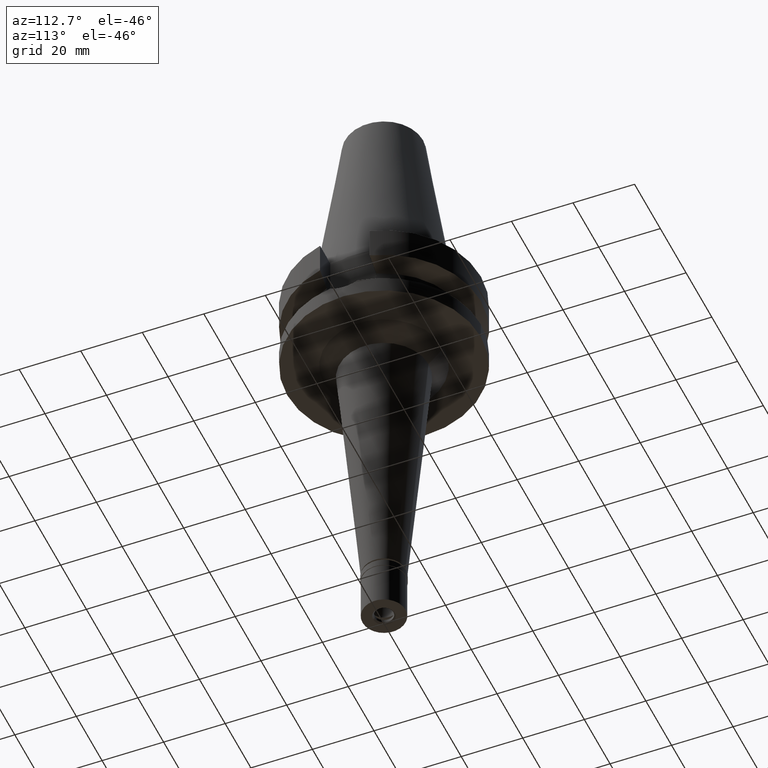
[diagram: clean part render]
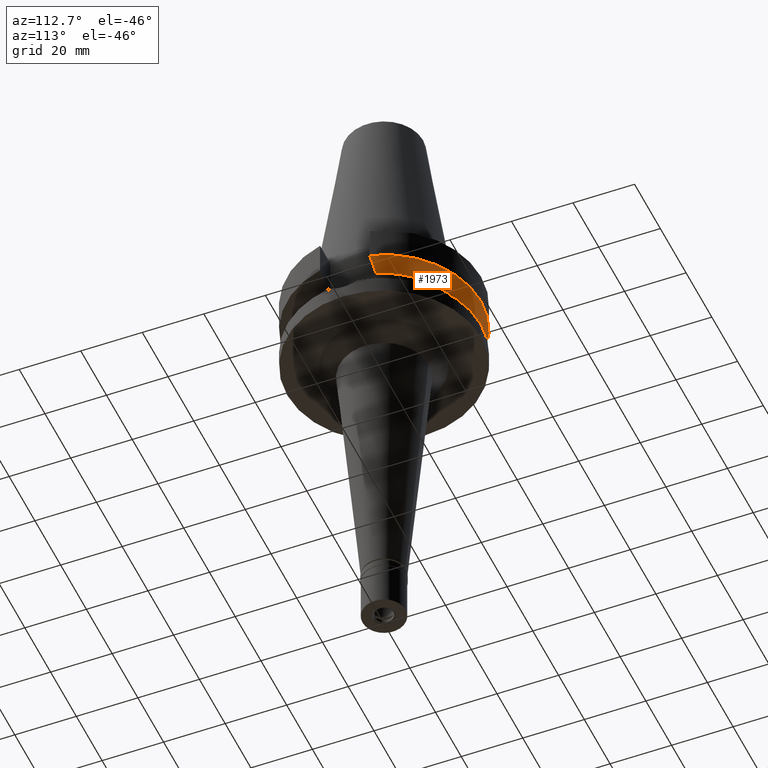
[diagram: same view with one face highlighted and labeled with its STEP entity id]
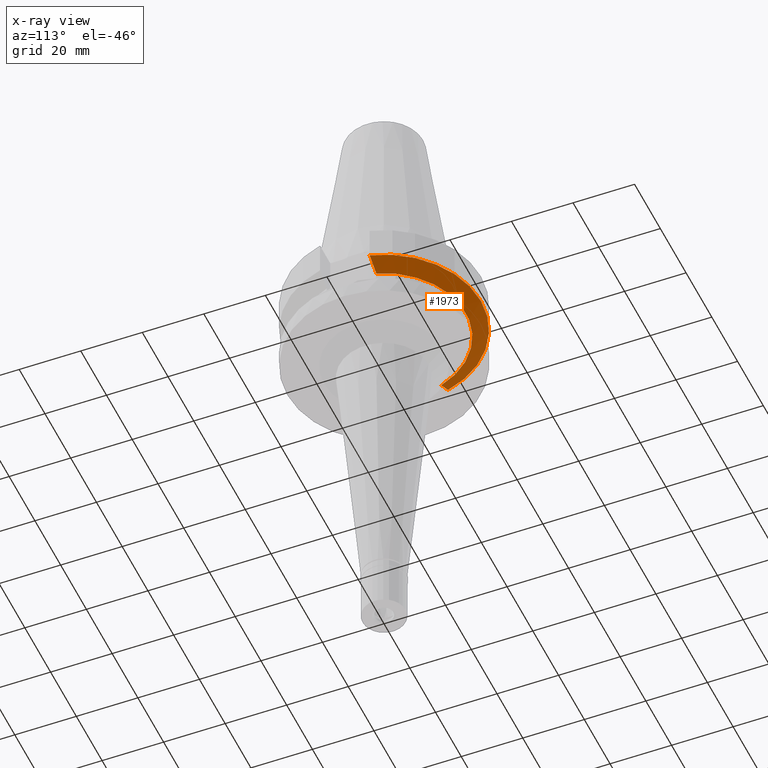
[diagram: x-ray of the same camera — body ghosted, the highlighted face saturated]
A machine part, auxiliary view. The second image highlights one B-rep face of the part: STEP entity #1973.
The next image is the same camera in x-ray: the body ghosted, the highlighted face saturated — about 0% of this face is hidden behind the body in this view.
In plain terms, the highlighted conical surface has half-angle 60 deg.
Its self-contained STEP definition (entity closure, byte-faithful):
#37 = ORIENTED_EDGE ( 'NONE', *, *, #2279, .F. ) ;
#41 = CARTESIAN_POINT ( 'NONE',  ( 0.0000000000000000000, 1.065333950388000029E-14, -14.45225699861000024 ) ) ;
#463 = B_SPLINE_CURVE_WITH_KNOTS ( 'NONE', 3,
 ( #2260, #1803, #1153, #2301 ),
 .UNSPECIFIED., .F., .F.,
 ( 4, 4 ),
 ( 0.0000000000000000000, 1.000000000000000000 ),
 .UNSPECIFIED. ) ;
#539 = CARTESIAN_POINT ( 'NONE',  ( 0.0000000000000000000, 1.065333950388000029E-14, -11.56550565266999975 ) ) ;
#574 = CIRCLE ( 'NONE', #2623, 26.50000000000000711 ) ;
#582 = DIRECTION ( 'NONE',  ( 0.0000000000000000000, 0.0000000000000000000, 1.000000000000000000 ) ) ;
#607 = EDGE_LOOP ( 'NONE', ( #886, #1360, #37, #2273 ) ) ;
#793 = VERTEX_POINT ( 'NONE', #1217 ) ;
#820 = VERTEX_POINT ( 'NONE', #2814 ) ;
#886 = ORIENTED_EDGE ( 'NONE', *, *, #947, .F. ) ;
#947 = EDGE_CURVE ( 'NONE', #793, #1323, #1582, .T. ) ;
#970 = DIRECTION ( 'NONE',  ( 0.0000000000000000000, 0.0000000000000000000, -1.000000000000000000 ) ) ;
#1153 = CARTESIAN_POINT ( 'NONE',  ( 26.83754616733500598, 8.049990822288577874, -13.57774887691741483 ) ) ;
#1217 = CARTESIAN_POINT ( 'NONE',  ( 30.45402291366999847, 8.049999277874000825, -11.56551215671000143 ) ) ;
#1323 = VERTEX_POINT ( 'NONE', #2117 ) ;
#1360 = ORIENTED_EDGE ( 'NONE', *, *, #1980, .T. ) ;
#1554 = CARTESIAN_POINT ( 'NONE',  ( -25.24772216375000156, 8.050001586456001945, -14.45224487668999913 ) ) ;
#1569 = AXIS2_PLACEMENT_3D ( 'NONE', #2241, #2480, #1832 ) ;
#1582 = CIRCLE ( 'NONE', #2434, 31.50000000000000000 ) ;
#1645 = EDGE_CURVE ( 'NONE', #2801, #1323, #2161, .T. ) ;
#1764 = DIRECTION ( 'NONE',  ( 0.0000000000000000000, 1.000000000000000000, 0.0000000000000000000 ) ) ;
#1803 = CARTESIAN_POINT ( 'NONE',  ( 28.57292329744477399, 8.049998556689974549, -12.61549605143252961 ) ) ;
#1806 = CARTESIAN_POINT ( 'NONE',  ( -25.24772216375000156, 8.050001586456001945, -14.45224487668999913 ) ) ;
#1815 = FACE_OUTER_BOUND ( 'NONE', #607, .T. ) ;
#1817 = CONICAL_SURFACE ( 'NONE', #1569, 29.00000000000000000, 1.047197551196400456 ) ;
#1832 = DIRECTION ( 'NONE',  ( 0.0000000000000000000, 1.000000000000000000, 0.0000000000000000000 ) ) ;
#1885 = CARTESIAN_POINT ( 'NONE',  ( -26.83758148511916630, 8.050003176338618616, -13.57772735120819441 ) ) ;
#1973 = ADVANCED_FACE ( 'NONE', ( #1815 ), #1817, .T. ) ;
#1980 = EDGE_CURVE ( 'NONE', #793, #820, #463, .T. ) ;
#2098 = CARTESIAN_POINT ( 'NONE',  ( -28.57295871562528689, 8.050008281920954190, -12.61547480249530118 ) ) ;
#2117 = CARTESIAN_POINT ( 'NONE',  ( -30.45402162752999686, 8.050004143477000440, -11.56546832998999896 ) ) ;
#2161 = B_SPLINE_CURVE_WITH_KNOTS ( 'NONE', 3,
 ( #1554, #1885, #2098, #2947 ),
 .UNSPECIFIED., .F., .F.,
 ( 4, 4 ),
 ( 0.0000000000000000000, 1.000000000000000000 ),
 .UNSPECIFIED. ) ;
#2241 = CARTESIAN_POINT ( 'NONE',  ( 0.0000000000000000000, 1.065333950388000029E-14, -13.00888132564000088 ) ) ;
#2260 = CARTESIAN_POINT ( 'NONE',  ( 30.45402291366999847, 8.049999277874000825, -11.56551215671000143 ) ) ;
#2273 = ORIENTED_EDGE ( 'NONE', *, *, #1645, .T. ) ;
#2279 = EDGE_CURVE ( 'NONE', #2801, #820, #574, .T. ) ;
#2301 = CARTESIAN_POINT ( 'NONE',  ( 25.24772413107000091, 8.049995416219999811, -14.45229202467000107 ) ) ;
#2434 = AXIS2_PLACEMENT_3D ( 'NONE', #539, #582, #1764 ) ;
#2480 = DIRECTION ( 'NONE',  ( 0.0000000000000000000, 0.0000000000000000000, 1.000000000000000000 ) ) ;
#2623 = AXIS2_PLACEMENT_3D ( 'NONE', #41, #970, #2791 ) ;
#2791 = DIRECTION ( 'NONE',  ( -0.9527442516822307583, 0.3037735849057093818, 0.0000000000000000000 ) ) ;
#2801 = VERTEX_POINT ( 'NONE', #1806 ) ;
#2814 = CARTESIAN_POINT ( 'NONE',  ( 25.24772413107000091, 8.049995416219999811, -14.45229202467000107 ) ) ;
#2947 = CARTESIAN_POINT ( 'NONE',  ( -30.45402162752999686, 8.050004143477000440, -11.56546832998999896 ) ) ;